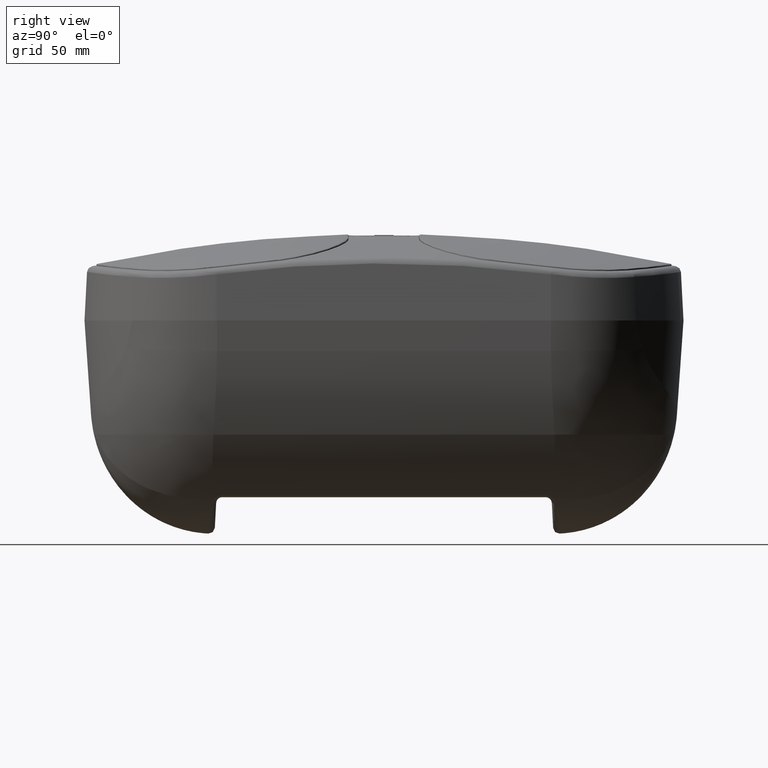
[diagram: clean part render]
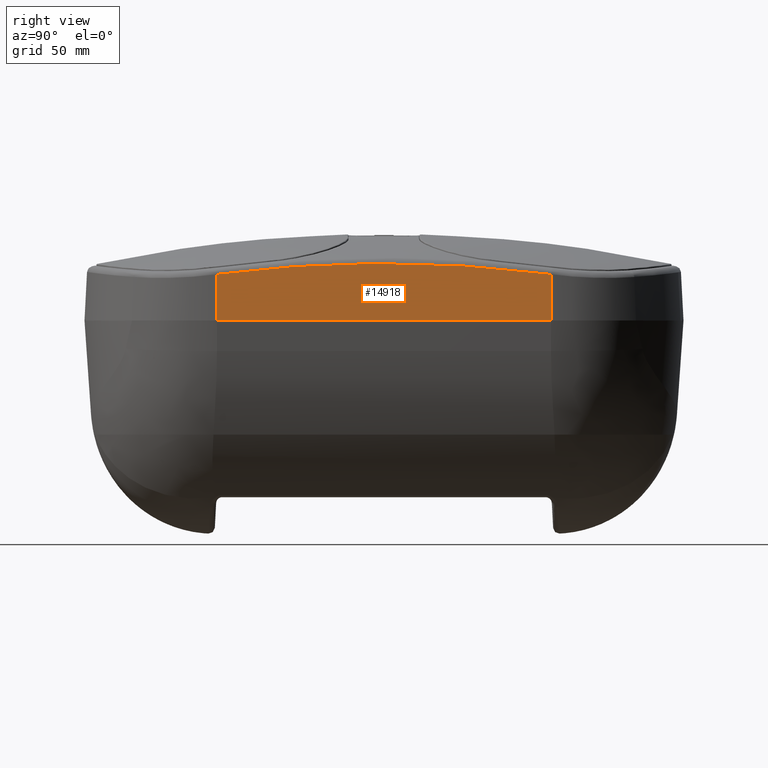
[diagram: same view with one face highlighted and labeled with its STEP entity id]
A machine part, right view. The second image highlights one B-rep face of the part: STEP entity #14918.
In plain terms, the highlighted planar face has unit normal (0.9986, -0, 0.0523).
Its self-contained STEP definition (entity closure, byte-faithful):
#326 = VERTEX_POINT ( 'NONE', #12282 ) ;
#734 = FACE_OUTER_BOUND ( 'NONE', #13176, .T. ) ;
#1030 = DIRECTION ( 'NONE',  ( 2.465190328815662439E-32, 1.000000000000000000, 4.287526199837192785E-16 ) ) ;
#1355 = AXIS2_PLACEMENT_3D ( 'NONE', #13490, #8798, #13645 ) ;
#1446 = ORIENTED_EDGE ( 'NONE', *, *, #14429, .T. ) ;
#1620 = VERTEX_POINT ( 'NONE', #2962 ) ;
#1914 = CARTESIAN_POINT ( 'NONE',  ( 72.49999999999995737, -104.0790243500523360, 177.9999999999990337 ) ) ;
#2125 = VECTOR ( 'NONE', #1030, 1000.000000000000000 ) ;
#2486 = EDGE_CURVE ( 'Defeatured_1_126+Defeatured_1_142+Defeatured_1_125+Defeatured_1_127', #12542, #1620, #7615, .T. ) ;
#2962 = CARTESIAN_POINT ( 'NONE',  ( 71.30816936246783655, -38.83594833160439208, 200.7414833033724904 ) ) ;
#4287 = ORIENTED_EDGE ( 'NONE', *, *, #2486, .T. ) ;
#4365 = LINE ( 'NONE', #1914, #2125 ) ;
#5130 = PLANE ( 'NONE',  #1355 ) ;
#5554 = DIRECTION ( 'NONE',  ( 0.05233595624294384852, 4.281650294191462057E-16, -0.9986295347545739443 ) ) ;
#6436 = VECTOR ( 'NONE', #5554, 1000.000000000000000 ) ;
#6755 = CARTESIAN_POINT ( 'NONE',  ( 72.50000000000000000, -38.83594833160437787, 177.9999999999990337 ) ) ;
#7615 = B_SPLINE_CURVE_WITH_KNOTS ( 'NONE', 3,
 ( #7992, #12700, #7907, #10462, #15142, #9289, #12863, #15386, #11661, #8319 ),
 .UNSPECIFIED., .F., .F.,
 ( 4, 2, 2, 2, 4 ),
 ( 2.513374269302153602E-16, 0.04121740551094982968, 0.08243481102189940957, 0.1236522165328489964, 0.1648696220437985693 ),
 .UNSPECIFIED. ) ;
#7907 = CARTESIAN_POINT ( 'NONE',  ( 71.14438636813743244, 98.35680809849735340, 203.8666490053181235 ) ) ;
#7980 = VECTOR ( 'NONE', #12401, 1000.000000000000114 ) ;
#7992 = CARTESIAN_POINT ( 'NONE',  ( 71.30816936246789339, 125.6901091218995674, 200.7414833033724904 ) ) ;
#8319 = CARTESIAN_POINT ( 'NONE',  ( 71.30816936246783655, -38.83594833160439208, 200.7414833033724904 ) ) ;
#8568 = CARTESIAN_POINT ( 'NONE',  ( 71.09914005976432350, 125.6901091218995674, 204.7299999999991087 ) ) ;
#8798 = DIRECTION ( 'NONE',  ( 0.9986295347545739443, -2.243917835851549369E-17, 0.05233595624294384852 ) ) ;
#8918 = EDGE_CURVE ( 'Defeatured_1_125+Defeatured_1_126+Defeatured_1_141+Defeatured_1_116', #12542, #13062, #13659, .T. ) ;
#9289 = CARTESIAN_POINT ( 'NONE',  ( 71.02737863173493338, 29.66223559898040563, 206.0992896171340760 ) ) ;
#10462 = CARTESIAN_POINT ( 'NONE',  ( 71.05087007996611703, 70.93669297395631190, 205.6510460824439122 ) ) ;
#10762 = CARTESIAN_POINT ( 'NONE',  ( 71.30816936246789339, 125.6901091218995674, 200.7414833033724904 ) ) ;
#11632 = ORIENTED_EDGE ( 'NONE', *, *, #8918, .F. ) ;
#11661 = CARTESIAN_POINT ( 'NONE',  ( 71.21442678816927696, -25.18393958824778167, 202.5301981770226121 ) ) ;
#12282 = CARTESIAN_POINT ( 'NONE',  ( 72.49999999999980105, -38.83594833108687538, 177.9999999999967599 ) ) ;
#12401 = DIRECTION ( 'NONE',  ( 0.05233595624295361154, 4.281650294191460084E-16, -0.9986295347545733891 ) ) ;
#12542 = VERTEX_POINT ( 'NONE', #10762 ) ;
#12700 = CARTESIAN_POINT ( 'NONE',  ( 71.21442678931023806, 112.0381005447085272, 202.5301981552520090 ) ) ;
#12863 = CARTESIAN_POINT ( 'NONE',  ( 71.05086325947999626, 15.91996921788427599, 205.6511762250684967 ) ) ;
#13062 = VERTEX_POINT ( 'NONE', #13563 ) ;
#13176 = EDGE_LOOP ( 'NONE', ( #11632, #4287, #1446, #14613 ) ) ;
#13490 = CARTESIAN_POINT ( 'NONE',  ( 72.50000000000000000, 167.5441956960156062, 177.9999999999991189 ) ) ;
#13563 = CARTESIAN_POINT ( 'NONE',  ( 72.49999999999995737, 125.6901091218996243, 177.9999999999991189 ) ) ;
#13645 = DIRECTION ( 'NONE',  ( 0.05233595624294384852, 4.281650294191462057E-16, -0.9986295347545739443 ) ) ;
#13659 = LINE ( 'NONE', #8568, #7980 ) ;
#14316 = LINE ( 'NONE', #6755, #6436 ) ;
#14429 = EDGE_CURVE ( 'Defeatured_1_126+Defeatured_1_127+Defeatured_1_142+Defeatured_1_117', #1620, #326, #14316, .T. ) ;
#14542 = EDGE_CURVE ( 'Defeatured_1_126+Defeatured_1_117+Defeatured_1_127+Defeatured_1_125', #326, #13062, #4365, .T. ) ;
#14613 = ORIENTED_EDGE ( 'NONE', *, *, #14542, .T. ) ;
#14918 = ADVANCED_FACE ( 'Defeatured_1_126', ( #734 ), #5130, .T. ) ;
#15142 = CARTESIAN_POINT ( 'NONE',  ( 71.02738541949308626, 57.19788115991207889, 206.0991600989923427 ) ) ;
#15386 = CARTESIAN_POINT ( 'NONE',  ( 71.14438294749072611, -11.50214582999764623, 203.8667142751418169 ) ) ;